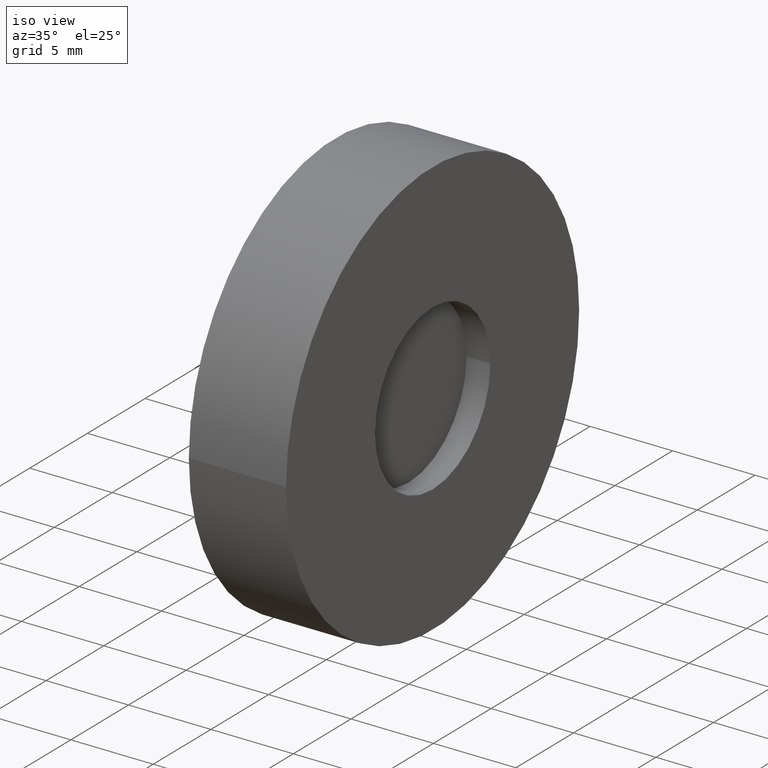
[diagram: clean part render]
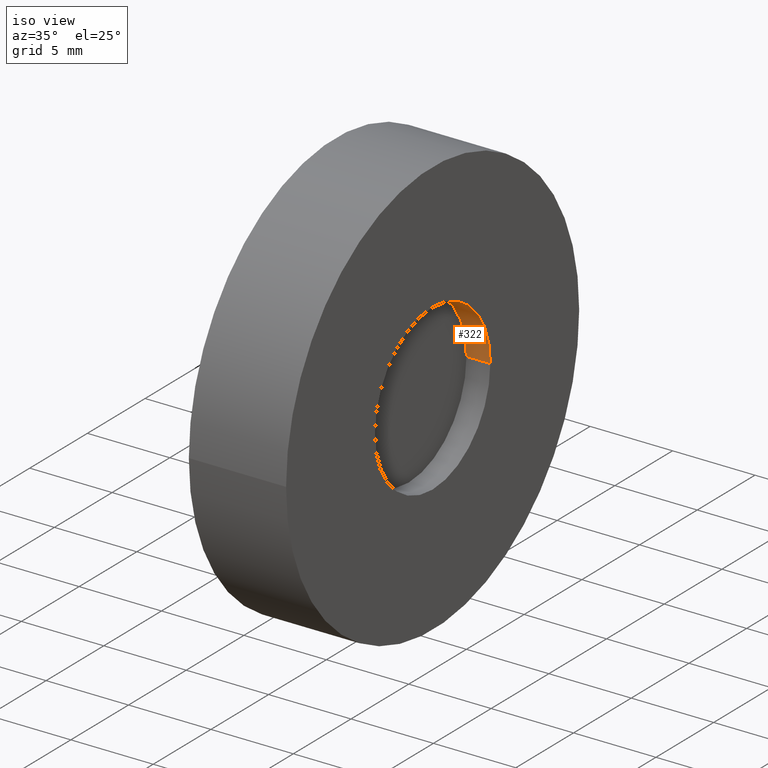
[diagram: same view with one face highlighted and labeled with its STEP entity id]
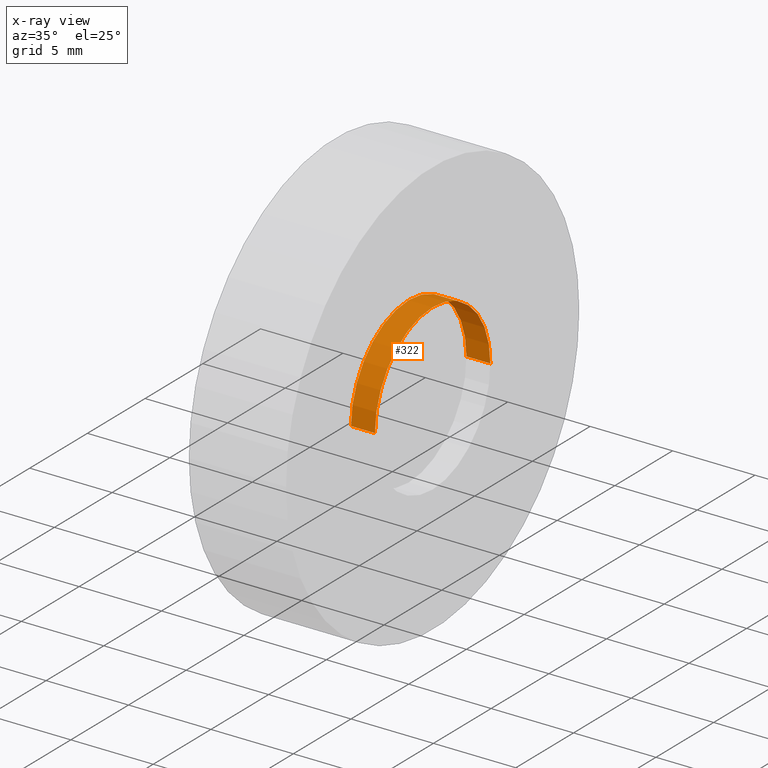
[diagram: x-ray of the same camera — body ghosted, the highlighted face saturated]
A machine part, iso view. The second image highlights one B-rep face of the part: STEP entity #322.
The next image is the same camera in x-ray: the body ghosted, the highlighted face saturated — about 0% of this face is hidden behind the body in this view.
In plain terms, the highlighted cylindrical surface (partial cylindrical patch) has radius 5 mm, axis along (1, 0, 0).
Its self-contained STEP definition (entity closure, byte-faithful):
#5 = LINE ( 'NONE', #113, #573 ) ;
#6 = LINE ( 'NONE', #8, #179 ) ;
#7 = CARTESIAN_POINT ( 'NONE',  ( 1.500000000000000000, -5.000000000000000000, 6.123233995736771213E-16 ) ) ;
#8 = CARTESIAN_POINT ( 'NONE',  ( 2.225000000000000089, -5.000000000000000000, 6.123233995736771213E-16 ) ) ;
#46 = CARTESIAN_POINT ( 'NONE',  ( 2.949999999999999734, -5.000000000000000000, 6.123233995736771213E-16 ) ) ;
#84 = ORIENTED_EDGE ( 'NONE', *, *, #289, .F. ) ;
#86 = CIRCLE ( 'NONE', #462, 5.000000000000000000 ) ;
#89 = AXIS2_PLACEMENT_3D ( 'NONE', #143, #614, #102 ) ;
#92 = EDGE_CURVE ( 'NONE', #649, #435, #86, .T. ) ;
#95 = CARTESIAN_POINT ( 'NONE',  ( 1.500000000000000000, 5.000000000000000000, 0.000000000000000000 ) ) ;
#102 = DIRECTION ( 'NONE',  ( 0.000000000000000000, 0.000000000000000000, -1.000000000000000000 ) ) ;
#103 = CARTESIAN_POINT ( 'NONE',  ( 2.949999999999999734, 5.000000000000000000, 0.000000000000000000 ) ) ;
#108 = CARTESIAN_POINT ( 'NONE',  ( 2.225000000000000089, 0.000000000000000000, 0.000000000000000000 ) ) ;
#110 = DIRECTION ( 'NONE',  ( 0.000000000000000000, 1.000000000000000000, 0.000000000000000000 ) ) ;
#113 = CARTESIAN_POINT ( 'NONE',  ( 2.225000000000000089, 5.000000000000000000, 0.000000000000000000 ) ) ;
#143 = CARTESIAN_POINT ( 'NONE',  ( 1.500000000000000000, 0.000000000000000000, 0.000000000000000000 ) ) ;
#179 = VECTOR ( 'NONE', #630, 1000.000000000000000 ) ;
#225 = VERTEX_POINT ( 'NONE', #95 ) ;
#229 = DIRECTION ( 'NONE',  ( 1.000000000000000000, 0.000000000000000000, 0.000000000000000000 ) ) ;
#289 = EDGE_CURVE ( 'NONE', #589, #435, #6, .T. ) ;
#312 = DIRECTION ( 'NONE',  ( 1.000000000000000000, 0.000000000000000000, 0.000000000000000000 ) ) ;
#322 = ADVANCED_FACE ( 'NONE', ( #626 ), #572, .F. ) ;
#352 = DIRECTION ( 'NONE',  ( 1.000000000000000000, 0.000000000000000000, 0.000000000000000000 ) ) ;
#387 = ORIENTED_EDGE ( 'NONE', *, *, #656, .T. ) ;
#391 = CARTESIAN_POINT ( 'NONE',  ( 2.949999999999999734, 0.000000000000000000, 0.000000000000000000 ) ) ;
#417 = EDGE_CURVE ( 'NONE', #225, #589, #434, .T. ) ;
#434 = CIRCLE ( 'NONE', #89, 5.000000000000000000 ) ;
#435 = VERTEX_POINT ( 'NONE', #46 ) ;
#436 = DIRECTION ( 'NONE',  ( 0.000000000000000000, 0.000000000000000000, -1.000000000000000000 ) ) ;
#462 = AXIS2_PLACEMENT_3D ( 'NONE', #391, #229, #436 ) ;
#467 = AXIS2_PLACEMENT_3D ( 'NONE', #108, #352, #110 ) ;
#537 = EDGE_LOOP ( 'NONE', ( #84, #567, #387, #590 ) ) ;
#567 = ORIENTED_EDGE ( 'NONE', *, *, #417, .F. ) ;
#572 = CYLINDRICAL_SURFACE ( 'NONE', #467, 5.000000000000000000 ) ;
#573 = VECTOR ( 'NONE', #312, 1000.000000000000000 ) ;
#589 = VERTEX_POINT ( 'NONE', #7 ) ;
#590 = ORIENTED_EDGE ( 'NONE', *, *, #92, .T. ) ;
#614 = DIRECTION ( 'NONE',  ( 1.000000000000000000, 0.000000000000000000, 0.000000000000000000 ) ) ;
#626 = FACE_OUTER_BOUND ( 'NONE', #537, .T. ) ;
#630 = DIRECTION ( 'NONE',  ( 1.000000000000000000, 0.000000000000000000, 0.000000000000000000 ) ) ;
#649 = VERTEX_POINT ( 'NONE', #103 ) ;
#656 = EDGE_CURVE ( 'NONE', #225, #649, #5, .T. ) ;